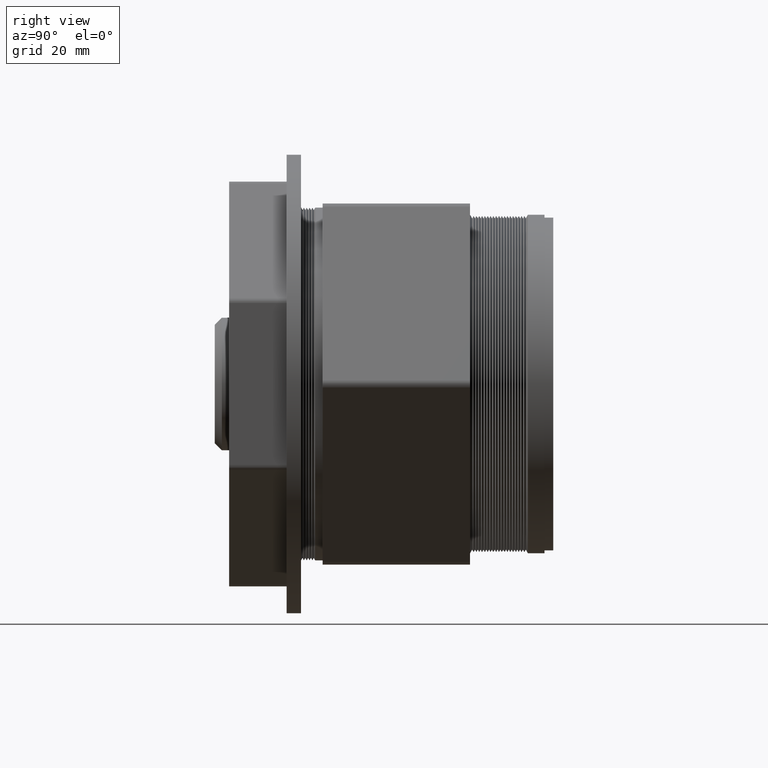
[diagram: clean part render]
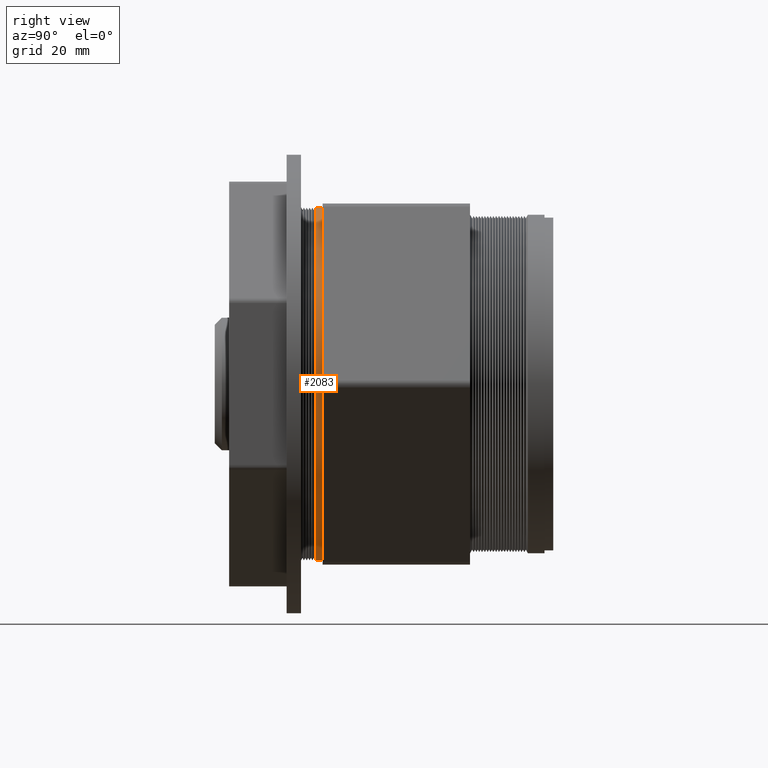
[diagram: same view with one face highlighted and labeled with its STEP entity id]
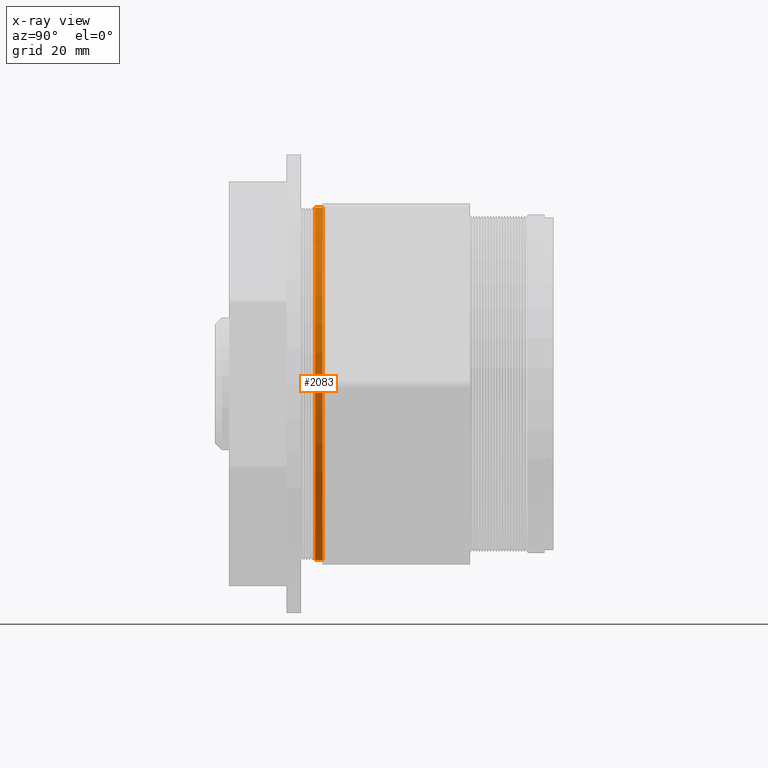
[diagram: x-ray of the same camera — body ghosted, the highlighted face saturated]
A machine part, right view. The second image highlights one B-rep face of the part: STEP entity #2083.
The next image is the same camera in x-ray: the body ghosted, the highlighted face saturated — about 0% of this face is hidden behind the body in this view.
In plain terms, the highlighted cylindrical surface (partial cylindrical patch) has radius 31.75 mm, axis along (-0, 1, -0).
Its self-contained STEP definition (entity closure, byte-faithful):
#152 = DIRECTION ( 'NONE',  ( -0.0000000000000000000, 1.000000000000000000, -0.0000000000000000000 ) ) ;
#172 = VECTOR ( 'NONE', #152, 39.37007874015748100 ) ;
#173 = CARTESIAN_POINT ( 'NONE',  ( 1.530808498934191600E-016, 1.843561561718224600, -1.250000000000000000 ) ) ;
#174 = LINE ( 'NONE', #173, #172 ) ;
#216 = CARTESIAN_POINT ( 'NONE',  ( 1.530808498934191600E-016, 0.7650000000000000100, -1.250000000000000000 ) ) ;
#962 = DIRECTION ( 'NONE',  ( 0.0000000000000000000, 0.0000000000000000000, 1.000000000000000000 ) ) ;
#963 = DIRECTION ( 'NONE',  ( -0.0000000000000000000, 1.000000000000000000, -0.0000000000000000000 ) ) ;
#964 = CARTESIAN_POINT ( 'NONE',  ( 0.0000000000000000000, 0.7650000000000000100, 0.0000000000000000000 ) ) ;
#965 = AXIS2_PLACEMENT_3D ( 'NONE', #964, #963, #962 ) ;
#966 = CIRCLE ( 'NONE', #965, 1.250000000000000000 ) ;
#1128 = CARTESIAN_POINT ( 'NONE',  ( 0.0000000000000000000, 0.7650000000000000100, 1.250000000000000000 ) ) ;
#1129 = DIRECTION ( 'NONE',  ( -0.0000000000000000000, 1.000000000000000000, -0.0000000000000000000 ) ) ;
#1130 = VECTOR ( 'NONE', #1129, 39.37007874015748100 ) ;
#1131 = CARTESIAN_POINT ( 'NONE',  ( 0.0000000000000000000, 1.843561561718224600, 1.250000000000000000 ) ) ;
#1132 = LINE ( 'NONE', #1131, #1130 ) ;
#1134 = AXIS2_PLACEMENT_3D ( 'NONE', #1142, #1141, #1140 ) ;
#1135 = CYLINDRICAL_SURFACE ( 'NONE', #1134, 1.250000000000000000 ) ;
#1140 = DIRECTION ( 'NONE',  ( 0.0000000000000000000, 0.0000000000000000000, 1.000000000000000000 ) ) ;
#1141 = DIRECTION ( 'NONE',  ( -0.0000000000000000000, 1.000000000000000000, -0.0000000000000000000 ) ) ;
#1142 = CARTESIAN_POINT ( 'NONE',  ( 0.0000000000000000000, 1.843561561718224600, 0.0000000000000000000 ) ) ;
#1154 = FACE_OUTER_BOUND ( 'NONE', #2228, .T. ) ;
#1980 = VERTEX_POINT ( 'NONE', #4080 ) ;
#1982 = EDGE_CURVE ( 'NONE', #1983, #1980, #4079, .T. ) ;
#1983 = VERTEX_POINT ( 'NONE', #4074 ) ;
#2075 = ORIENTED_EDGE ( 'NONE', *, *, #2145, .F. ) ;
#2076 = EDGE_CURVE ( 'NONE', #2142, #2242, #966, .T. ) ;
#2083 = ADVANCED_FACE ( 'NONE', ( #1154 ), #1135, .T. ) ;
#2142 = VERTEX_POINT ( 'NONE', #1128 ) ;
#2143 = ORIENTED_EDGE ( 'NONE', *, *, #2076, .F. ) ;
#2145 = EDGE_CURVE ( 'NONE', #1983, #2142, #1132, .T. ) ;
#2220 = EDGE_CURVE ( 'NONE', #1980, #2242, #174, .T. ) ;
#2221 = ORIENTED_EDGE ( 'NONE', *, *, #2220, .T. ) ;
#2222 = ORIENTED_EDGE ( 'NONE', *, *, #1982, .T. ) ;
#2228 = EDGE_LOOP ( 'NONE', ( #2222, #2221, #2143, #2075 ) ) ;
#2242 = VERTEX_POINT ( 'NONE', #216 ) ;
#4074 = CARTESIAN_POINT ( 'NONE',  ( 0.0000000000000000000, 0.7119999999999999700, 1.250000000000000000 ) ) ;
#4075 = DIRECTION ( 'NONE',  ( 0.0000000000000000000, 0.0000000000000000000, 1.000000000000000000 ) ) ;
#4076 = DIRECTION ( 'NONE',  ( -0.0000000000000000000, 1.000000000000000000, -0.0000000000000000000 ) ) ;
#4077 = CARTESIAN_POINT ( 'NONE',  ( 0.0000000000000000000, 0.7119999999999999700, 0.0000000000000000000 ) ) ;
#4078 = AXIS2_PLACEMENT_3D ( 'NONE', #4077, #4076, #4075 ) ;
#4079 = CIRCLE ( 'NONE', #4078, 1.250000000000000000 ) ;
#4080 = CARTESIAN_POINT ( 'NONE',  ( 1.530808498934191600E-016, 0.7119999999999999700, -1.250000000000000000 ) ) ;